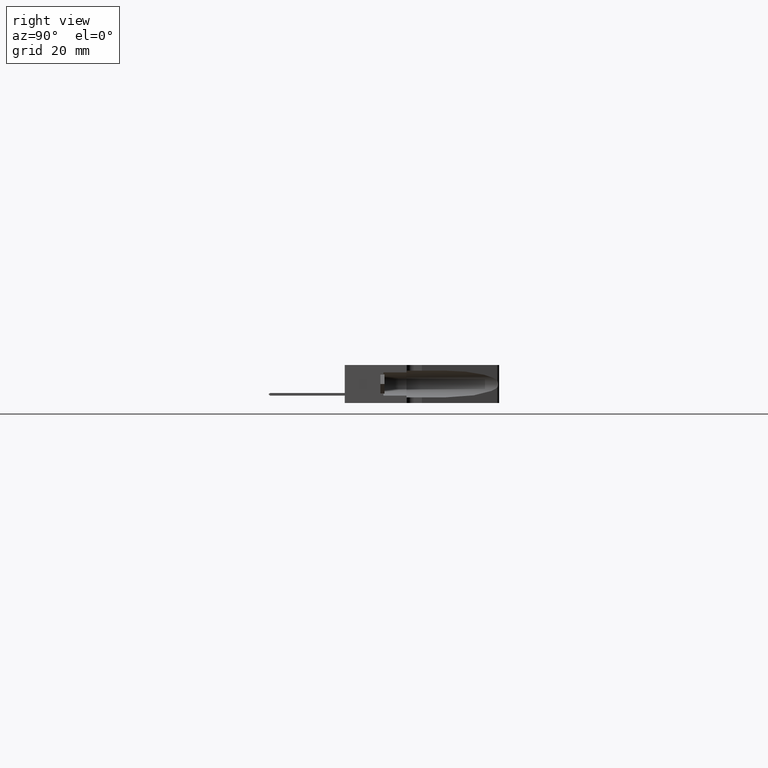
[diagram: clean part render]
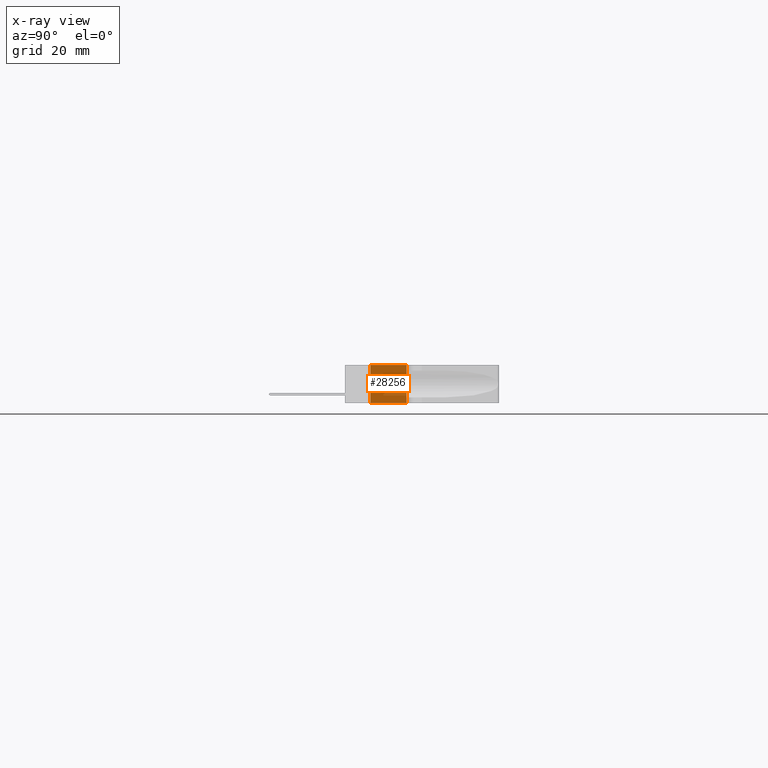
[diagram: x-ray — body ghosted, one internal face saturated and labeled with its STEP entity id]
A machine part, right view, then the same camera in x-ray: the body is ghosted and one INTERNAL B-rep face — a face not visible from any outside direction — is saturated and labeled: STEP entity #28256.
In plain terms, the highlighted planar face has unit normal (1, 0, 0).
Its self-contained STEP definition (entity closure, byte-faithful):
#142 = DIRECTION ( 'NONE',  ( 0.0000000000000000000, 0.0000000000000000000, -1.000000000000000000 ) ) ;
#168 = VECTOR ( 'NONE', #36401, 39.37007874015748100 ) ;
#2360 = CARTESIAN_POINT ( 'NONE',  ( 0.2874999999999999800, 0.2500000000000000000, -0.3700000000000001600 ) ) ;
#2377 = PLANE ( 'NONE',  #37619 ) ;
#2753 = LINE ( 'NONE', #26936, #30968 ) ;
#2808 = DIRECTION ( 'NONE',  ( 0.0000000000000000000, 0.0000000000000000000, -1.000000000000000000 ) ) ;
#4252 = EDGE_CURVE ( 'NONE', #16861, #10562, #31954, .T. ) ;
#4637 = CARTESIAN_POINT ( 'NONE',  ( 0.2874999999999999800, 0.5999999999999999800, 0.0000000000000000000 ) ) ;
#10562 = VERTEX_POINT ( 'NONE', #4637 ) ;
#10615 = LINE ( 'NONE', #37026, #31885 ) ;
#11325 = VERTEX_POINT ( 'NONE', #42142 ) ;
#13147 = EDGE_LOOP ( 'NONE', ( #37830, #43399, #21108, #28619 ) ) ;
#16229 = CARTESIAN_POINT ( 'NONE',  ( 0.2874999999999999800, 0.2500000000000000000, 0.0000000000000000000 ) ) ;
#16700 = EDGE_CURVE ( 'NONE', #11325, #17268, #41147, .T. ) ;
#16861 = VERTEX_POINT ( 'NONE', #16229 ) ;
#17268 = VERTEX_POINT ( 'NONE', #26236 ) ;
#19851 = EDGE_CURVE ( 'NONE', #16861, #11325, #10615, .T. ) ;
#21108 = ORIENTED_EDGE ( 'NONE', *, *, #19851, .F. ) ;
#22836 = FACE_OUTER_BOUND ( 'NONE', #13147, .T. ) ;
#23046 = CARTESIAN_POINT ( 'NONE',  ( 0.2874999999999999800, 0.2500000000000000000, 0.0000000000000000000 ) ) ;
#23599 = CARTESIAN_POINT ( 'NONE',  ( 0.2874999999999999800, 0.2500000000000000000, 0.0000000000000000000 ) ) ;
#23952 = DIRECTION ( 'NONE',  ( 0.0000000000000000000, 0.0000000000000000000, -1.000000000000000000 ) ) ;
#26236 = CARTESIAN_POINT ( 'NONE',  ( 0.2874999999999999800, 0.5999999999999999800, -0.3700000000000001600 ) ) ;
#26936 = CARTESIAN_POINT ( 'NONE',  ( 0.2874999999999999800, 0.5999999999999999800, 0.0000000000000000000 ) ) ;
#27729 = EDGE_CURVE ( 'NONE', #10562, #17268, #2753, .T. ) ;
#28256 = ADVANCED_FACE ( 'NONE', ( #22836 ), #2377, .F. ) ;
#28619 = ORIENTED_EDGE ( 'NONE', *, *, #4252, .T. ) ;
#30968 = VECTOR ( 'NONE', #142, 39.37007874015748100 ) ;
#31885 = VECTOR ( 'NONE', #23952, 39.37007874015748100 ) ;
#31954 = LINE ( 'NONE', #23599, #39917 ) ;
#34150 = DIRECTION ( 'NONE',  ( -0.0000000000000000000, 1.000000000000000000, -0.0000000000000000000 ) ) ;
#36401 = DIRECTION ( 'NONE',  ( -0.0000000000000000000, 1.000000000000000000, -0.0000000000000000000 ) ) ;
#37026 = CARTESIAN_POINT ( 'NONE',  ( 0.2874999999999999800, 0.2500000000000000000, 0.0000000000000000000 ) ) ;
#37619 = AXIS2_PLACEMENT_3D ( 'NONE', #23046, #39982, #2808 ) ;
#37830 = ORIENTED_EDGE ( 'NONE', *, *, #27729, .T. ) ;
#39917 = VECTOR ( 'NONE', #34150, 39.37007874015748100 ) ;
#39982 = DIRECTION ( 'NONE',  ( 1.000000000000000000, 0.0000000000000000000, 0.0000000000000000000 ) ) ;
#41147 = LINE ( 'NONE', #2360, #168 ) ;
#42142 = CARTESIAN_POINT ( 'NONE',  ( 0.2874999999999999800, 0.2500000000000000000, -0.3700000000000001600 ) ) ;
#43399 = ORIENTED_EDGE ( 'NONE', *, *, #16700, .F. ) ;